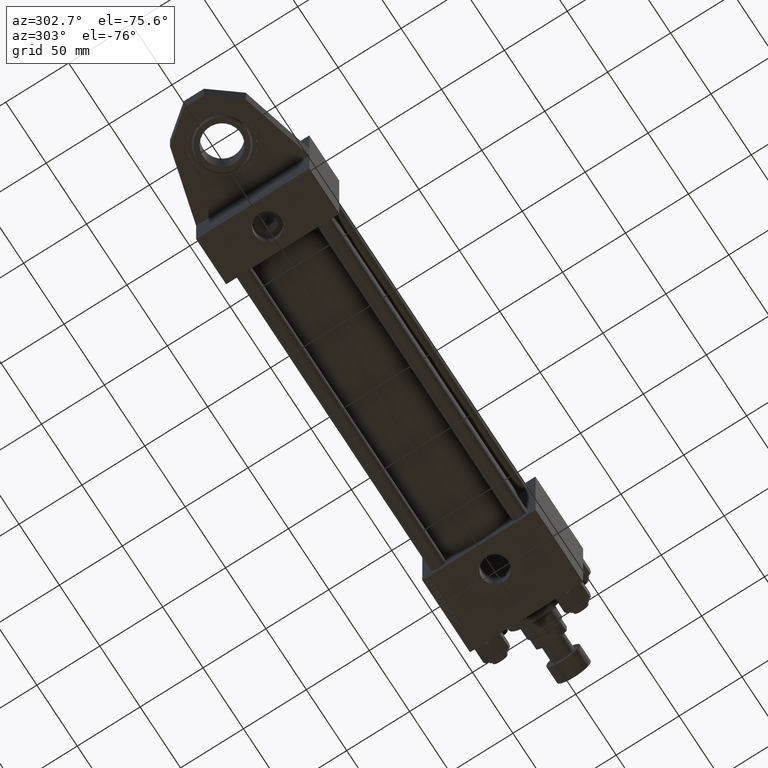
[diagram: clean part render]
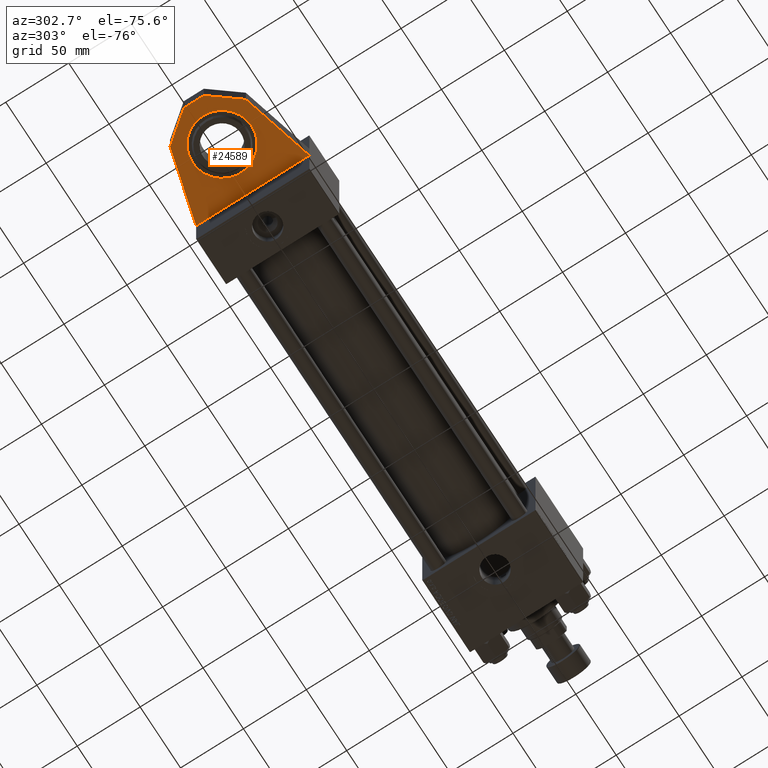
[diagram: same view with one face highlighted and labeled with its STEP entity id]
A machine part, auxiliary view. The second image highlights one B-rep face of the part: STEP entity #24589.
In plain terms, the highlighted planar face has unit normal (0, 0, 1).
Its self-contained STEP definition (entity closure, byte-faithful):
#438 = ORIENTED_EDGE ( 'NONE', *, *, #44827, .F. ) ;
#731 = CARTESIAN_POINT ( 'NONE',  ( -73.00000000000001421, -9.000000000000000000, 8.000000000000005329 ) ) ;
#1530 = FACE_BOUND ( 'NONE', #46063, .T. ) ;
#5444 = VERTEX_POINT ( 'NONE', #24447 ) ;
#5524 = CARTESIAN_POINT ( 'NONE',  ( -38.00000000000000000, -9.000000000000000000, 0.000000000000000000 ) ) ;
#5646 = ORIENTED_EDGE ( 'NONE', *, *, #8132, .T. ) ;
#8132 = EDGE_CURVE ( 'NONE', #14988, #26738, #39150, .T. ) ;
#8267 = VERTEX_POINT ( 'NONE', #23089 ) ;
#8369 = ORIENTED_EDGE ( 'NONE', *, *, #47056, .F. ) ;
#8600 = CARTESIAN_POINT ( 'NONE',  ( -55.50000000000000711, -9.000000000000000000, -30.12881982007243309 ) ) ;
#10028 = CARTESIAN_POINT ( 'NONE',  ( -55.50000000000000000, -9.000000000000000000, 30.12881982007244019 ) ) ;
#10350 = DIRECTION ( 'NONE',  ( 0.9659258262890672020, 0.000000000000000000, 0.2588190451025247363 ) ) ;
#10562 = AXIS2_PLACEMENT_3D ( 'NONE', #33510, #21538, #46029 ) ;
#11520 = CARTESIAN_POINT ( 'NONE',  ( -73.00000000000001421, -9.000000000000000000, 8.000000000000005329 ) ) ;
#12865 = EDGE_CURVE ( 'NONE', #50045, #26088, #42594, .T. ) ;
#13009 = PLANE ( 'NONE',  #10562 ) ;
#14988 = VERTEX_POINT ( 'NONE', #22355 ) ;
#16158 = AXIS2_PLACEMENT_3D ( 'NONE', #5524, #29507, #46810 ) ;
#17648 = CARTESIAN_POINT ( 'NONE',  ( 0.000000000000000000, -9.000000000000000000, 45.00000000000000000 ) ) ;
#17795 = FACE_OUTER_BOUND ( 'NONE', #32989, .T. ) ;
#17942 = CARTESIAN_POINT ( 'NONE',  ( 0.000000000000000000, -9.000000000000000000, 45.00000000000000000 ) ) ;
#19237 = LINE ( 'NONE', #27226, #34987 ) ;
#21538 = DIRECTION ( 'NONE',  ( -0.000000000000000000, 1.000000000000000000, 0.000000000000000000 ) ) ;
#21909 = VECTOR ( 'NONE', #47084, 1000.000000000000000 ) ;
#22105 = ORIENTED_EDGE ( 'NONE', *, *, #31821, .T. ) ;
#22355 = CARTESIAN_POINT ( 'NONE',  ( -38.00000000000000000, -9.000000000000000000, -23.50000000000000355 ) ) ;
#22450 = DIRECTION ( 'NONE',  ( 0.000000000000000000, 0.000000000000000000, -1.000000000000000000 ) ) ;
#23089 = CARTESIAN_POINT ( 'NONE',  ( -73.00000000000001421, -9.000000000000000000, -7.999999999999994671 ) ) ;
#23387 = ORIENTED_EDGE ( 'NONE', *, *, #12865, .F. ) ;
#23980 = VECTOR ( 'NONE', #22450, 1000.000000000000000 ) ;
#24024 = VECTOR ( 'NONE', #24030, 1000.000000000000114 ) ;
#24030 = DIRECTION ( 'NONE',  ( 0.6202965109737124116, 0.000000000000000000, 0.7843674129346777102 ) ) ;
#24323 = DIRECTION ( 'NONE',  ( -0.9659258262890670910, -0.000000000000000000, 0.2588190451025247918 ) ) ;
#24447 = CARTESIAN_POINT ( 'NONE',  ( -55.50000000000000711, -9.000000000000000000, -30.12881982007243309 ) ) ;
#24589 = ADVANCED_FACE ( 'NONE', ( #1530, #17795 ), #13009, .F. ) ;
#26088 = VERTEX_POINT ( 'NONE', #17942 ) ;
#26699 = VECTOR ( 'NONE', #10350, 1000.000000000000227 ) ;
#26738 = VERTEX_POINT ( 'NONE', #39040 ) ;
#27104 = CARTESIAN_POINT ( 'NONE',  ( -73.00000000000001421, -9.000000000000000000, -7.999999999999994671 ) ) ;
#27126 = CARTESIAN_POINT ( 'NONE',  ( -55.50000000000000000, -9.000000000000000000, 30.12881982007244019 ) ) ;
#27226 = CARTESIAN_POINT ( 'NONE',  ( -73.00000000000001421, -9.000000000000000000, -7.999999999999994671 ) ) ;
#28243 = VECTOR ( 'NONE', #24323, 1000.000000000000227 ) ;
#29507 = DIRECTION ( 'NONE',  ( 0.000000000000000000, 1.000000000000000000, 0.000000000000000000 ) ) ;
#31474 = DIRECTION ( 'NONE',  ( -0.6202965109737120786, -0.000000000000000000, 0.7843674129346778212 ) ) ;
#31821 = EDGE_CURVE ( 'NONE', #26738, #14988, #37932, .T. ) ;
#32989 = EDGE_LOOP ( 'NONE', ( #438, #51434, #38401, #8369, #42789, #23387 ) ) ;
#33510 = CARTESIAN_POINT ( 'NONE',  ( 0.000000000000000000, -9.000000000000000000, 0.000000000000000000 ) ) ;
#33883 = LINE ( 'NONE', #17648, #23980 ) ;
#34673 = EDGE_CURVE ( 'NONE', #8267, #47967, #51073, .T. ) ;
#34956 = CARTESIAN_POINT ( 'NONE',  ( -38.00000000000000000, -9.000000000000000000, 0.000000000000000000 ) ) ;
#34987 = VECTOR ( 'NONE', #31474, 1000.000000000000227 ) ;
#36276 = LINE ( 'NONE', #11520, #24024 ) ;
#37289 = CARTESIAN_POINT ( 'NONE',  ( 0.000000000000000000, -8.999999999999987566, -44.99999999999999289 ) ) ;
#37932 = CIRCLE ( 'NONE', #45694, 23.50000000000000355 ) ;
#38401 = ORIENTED_EDGE ( 'NONE', *, *, #41012, .F. ) ;
#39040 = CARTESIAN_POINT ( 'NONE',  ( -38.00000000000000000, -9.000000000000000000, 23.50000000000000355 ) ) ;
#39150 = CIRCLE ( 'NONE', #16158, 23.50000000000000355 ) ;
#40298 = VERTEX_POINT ( 'NONE', #37289 ) ;
#41012 = EDGE_CURVE ( 'NONE', #5444, #8267, #19237, .T. ) ;
#41099 = LINE ( 'NONE', #8600, #28243 ) ;
#42594 = LINE ( 'NONE', #27126, #26699 ) ;
#42789 = ORIENTED_EDGE ( 'NONE', *, *, #46500, .F. ) ;
#43217 = DIRECTION ( 'NONE',  ( 0.000000000000000000, 1.000000000000000000, 0.000000000000000000 ) ) ;
#44827 = EDGE_CURVE ( 'NONE', #47967, #50045, #36276, .T. ) ;
#45694 = AXIS2_PLACEMENT_3D ( 'NONE', #34956, #43217, #46683 ) ;
#46029 = DIRECTION ( 'NONE',  ( 0.000000000000000000, -0.000000000000000000, 1.000000000000000000 ) ) ;
#46063 = EDGE_LOOP ( 'NONE', ( #22105, #5646 ) ) ;
#46500 = EDGE_CURVE ( 'NONE', #26088, #40298, #33883, .T. ) ;
#46683 = DIRECTION ( 'NONE',  ( 0.000000000000000000, 0.000000000000000000, 1.000000000000000000 ) ) ;
#46810 = DIRECTION ( 'NONE',  ( 0.000000000000000000, 0.000000000000000000, 1.000000000000000000 ) ) ;
#47056 = EDGE_CURVE ( 'NONE', #40298, #5444, #41099, .T. ) ;
#47084 = DIRECTION ( 'NONE',  ( 0.000000000000000000, 0.000000000000000000, 1.000000000000000000 ) ) ;
#47967 = VERTEX_POINT ( 'NONE', #731 ) ;
#50045 = VERTEX_POINT ( 'NONE', #10028 ) ;
#51073 = LINE ( 'NONE', #27104, #21909 ) ;
#51434 = ORIENTED_EDGE ( 'NONE', *, *, #34673, .F. ) ;